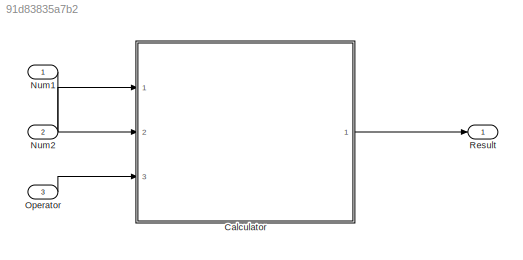
MODEL slx_91d83835a7b2
KIND model
CONFIG AbsTol = auto
CONFIG EnableMultiTasking = off
CONFIG FixedStep = auto
CONFIG MaxStep = auto
CONFIG MinStep = auto
CONFIG RelTol = 1e-3
CONFIG SampleTimeConstraint = Unconstrained
CONFIG SolverName = VariableStepAuto
CONFIG StartTime = 0.0
CONFIG StopTime = 10.0
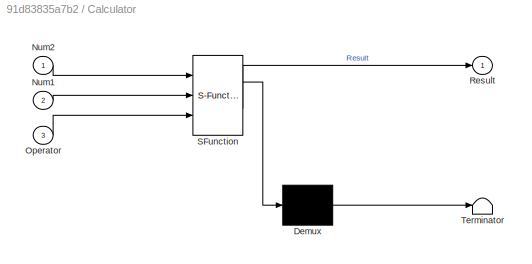
BLOCK [SubSystem] Calculator
  ErrorFcn = Stateflow.Translate.translate
  PermitHierarchicalResolution = ExplicitOnly
  PortSchema = {"entries":[{"content":{"sides":[{"content":{"connectorIds":["In2","In1","In3"]},"type":"ConnectorPlacement.EquallySpacedRectSide","uuid":"906ca186-096a-4428-b569-5a280e1bb027"},{"content":{"connectorIds":["Out1"],"side":"RIGHT"},"type":"ConnectorPlacement.EquallySpacedRectSide","uuid":"7a5f9e6f-72c9-4f68-abd8-927e021c8263"},{"content":{"connectorIds":[],"side":"TOP"},"type":"ConnectorPlacement.Eq...<+252ch>
  Ports = [3, 1]
  RTWFcnNameOpts = Use subsystem name
  RTWFileNameOpts = Use subsystem name
  RTWSystemCode = Reusable function
  RequestExecContextInheritance = off
  SFBlockType = Chart
  TreatAsAtomicUnit = on
BLOCK [Demux] Calculator/ Demux 
  Outputs = 1
  Ports = [1, 1]
BLOCK [S-Function] Calculator/ SFunction 
  EnableBusSupport = on
  FunctionName = sf_sfun
  PortCounts = [3 2]
  Ports = [3, 2]
  SFcnIsStateOwnerBlock = off
  SFunctionDeploymentMode = off
  Tag = Stateflow S-Function 3
BLOCK [Terminator] Calculator/ Terminator 
BLOCK [Inport] Calculator/Num1
  Port = 2
BLOCK [Inport] Calculator/Num2
BLOCK [Inport] Calculator/Operator
  Port = 3
BLOCK [Outport] Calculator/Result
BLOCK [Inport] Num1
BLOCK [Inport] Num2
  Port = 2
BLOCK [Inport] Operator
  Port = 3
BLOCK [Outport] Result
LINE Calculator:1 -> Result:1
LINE Num1:1 -> Calculator:2
LINE Num2:1 -> Calculator:1
LINE Operator:1 -> Calculator:3
CHART Calculator states=5 transitions=22
  STATE_LABEL 'add(N1,N2)'
  STATE_LABEL '{Result = N1 + N2;}'
  STATE_LABEL 'Calculator'
  STATE_LABEL '% Calculation'
  STATE_LABEL '[Operator == 0]'
  STATE_LABEL '{add(Num1,Num2);}'
  STATE_LABEL '[Operator == 1]'
  STATE_LABEL '{sub(Num1,Num2);}'
  STATE_LABEL '[Operator == 2]'
  STATE_LABEL '{divide(Num1,Num2);}'
  STATE_LABEL '{multiply(Num1,Num2);}'
  STATE_LABEL 'sub(N1,N2)'
  STATE_LABEL '{Result = N1 - N2;}'
  STATE_LABEL 'multiply(N1,N2)'
  STATE_LABEL '{Result = N1 * N2;}'
  STATE_LABEL 'divide(N1,N2)'
  STATE_LABEL '[N2 == 0]'
  STATE_LABEL '{Result = -1;}'
  STATE_LABEL '{Result = N1 / N2;}'
CHART  states=0 transitions=0
